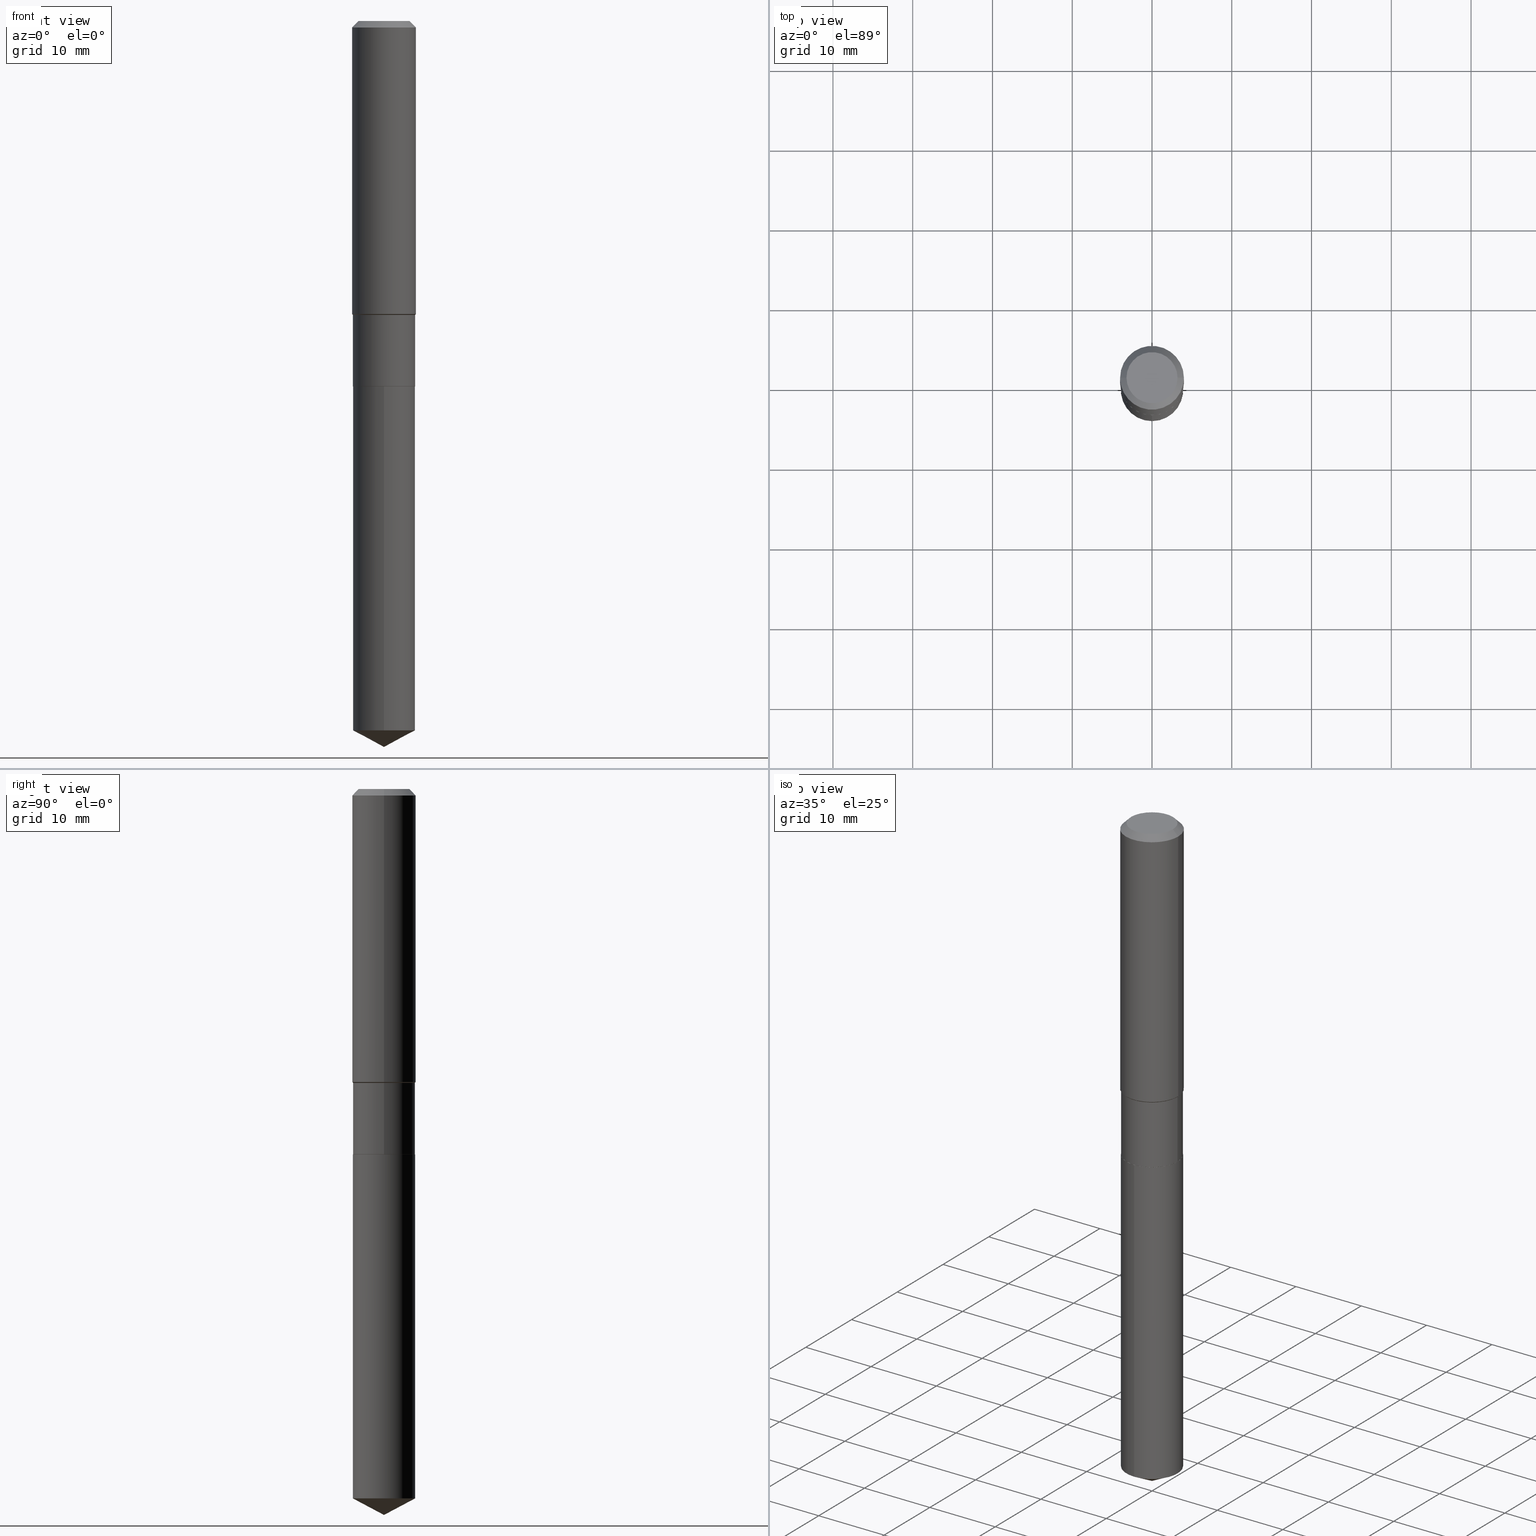
[diagram: canonical four-view strip — front | top / right | iso, engineering-drawing reading convention]
A machine part, canonical four-view strip (front | top / right | iso — engineering-drawing reading convention). The complete STEP part file that produces these views, byte-faithful:
ISO-10303-21;
HEADER;
FILE_DESCRIPTION (( 'STEP AP203' ),
    '1' );
FILE_NAME ('65208.STEP',
    '2024-04-24T21:24:12',
    ( '' ),
    ( '' ),
    'SwSTEP 2.0',
    'SolidWorks 2023',
    '' );
FILE_SCHEMA (( 'CONFIG_CONTROL_DESIGN' ));
ENDSEC;

DATA;
#1 = ORIENTED_EDGE ( 'NONE', *, *, #433, .F. ) ;
#2 = SECURITY_CLASSIFICATION ( '', '', #104 ) ;
#3 = DIRECTION ( 'NONE',  ( -2.445468806185136597E-29, 3.491481338843145583E-15, 1.000000000000000000 ) ) ;
#4 = EDGE_CURVE ( 'NONE', #477, #212, #108, .T. ) ;
#5 = AXIS2_PLACEMENT_3D ( 'NONE', #161, #412, #301 ) ;
#6 = FACE_OUTER_BOUND ( 'NONE', #184, .T. ) ;
#7 = EDGE_LOOP ( 'NONE', ( #424, #173 ) ) ;
#8 = LINE ( 'NONE', #280, #177 ) ;
#9 = FACE_OUTER_BOUND ( 'NONE', #304, .T. ) ;
#10 = ORIENTED_EDGE ( 'NONE', *, *, #160, .F. ) ;
#11 = LINE ( 'NONE', #153, #125 ) ;
#12 = CONICAL_SURFACE ( 'NONE', #287, 74.04434902938325536, 1.082104136236484937 ) ;
#13 = CONICAL_SURFACE ( 'NONE', #447, 0.1575000000000000011, 0.7853981633974450594 ) ;
#14 = CARTESIAN_POINT ( 'NONE',  ( -0.1535499999999999643, 1.091038370759633582E-15, -7.553024831086406471E-30 ) ) ;
#15 = CARTESIAN_POINT ( 'NONE',  ( 3.545929768968448850E-29, -5.062647941322561509E-15, -1.450000000000000178 ) ) ;
#16 = VERTEX_POINT ( 'NONE', #144 ) ;
#17 = DIRECTION ( 'NONE',  ( -2.445468806185136597E-29, 3.491481338843145583E-15, 1.000000000000000000 ) ) ;
#18 = VERTEX_POINT ( 'NONE', #261 ) ;
#19 = FACE_OUTER_BOUND ( 'NONE', #354, .T. ) ;
#20 = CARTESIAN_POINT ( 'NONE',  ( -0.1535499999999999365, -3.971609570562927927E-15, -1.450000000000000178 ) ) ;
#21 = CARTESIAN_POINT ( 'NONE',  ( -4.719860820353100843E-47, 6.738710358733633822E-33, 1.930043355456229866E-18 ) ) ;
#22 = CALENDAR_DATE ( 2024, 24, 4 ) ;
#23 = EDGE_CURVE ( 'NONE', #146, #360, #366, .T. ) ;
#24 = LENGTH_MEASURE_WITH_UNIT ( LENGTH_MEASURE( 0.02539999999999999897 ), #281 );
#25 = CONICAL_SURFACE ( 'NONE', #345, 0.1530499999999999916, 0.7853981633975507526 ) ;
#26 = CARTESIAN_POINT ( 'NONE',  ( -0.1575000000000000844, 1.119104808822158392E-15, -7.747322767151481189E-30 ) ) ;
#27 = FACE_OUTER_BOUND ( 'NONE', #381, .T. ) ;
#28 = ADVANCED_FACE ( 'NONE', ( #374 ), #487, .T. ) ;
#29 = AXIS2_PLACEMENT_3D ( 'NONE', #455, #315, #474 ) ;
#30 = AXIS2_PLACEMENT_3D ( 'NONE', #90, #233, #303 ) ;
#31 = PERSON_AND_ORGANIZATION ( #51, #242 ) ;
#32 = DIRECTION ( 'NONE',  ( -2.445434564979098040E-29, 3.491530374199081050E-15, 1.000000000000000000 ) ) ;
#33 = APPROVAL_ROLE ( '' ) ;
#34 = ORIENTED_EDGE ( 'NONE', *, *, #274, .T. ) ;
#35 = DIRECTION ( 'NONE',  ( 1.000000000000000000, 0.000000000000000000, 0.000000000000000000 ) ) ;
#36 = CONICAL_SURFACE ( 'NONE', #5, 0.1530499999999999916, 0.7853981633975507526 ) ;
#37 = AXIS2_PLACEMENT_3D ( 'NONE', #313, #350, #99 ) ;
#38 = ORIENTED_EDGE ( 'NONE', *, *, #232, .T. ) ;
#39 = CARTESIAN_POINT ( 'NONE',  ( 3.545929768968448850E-29, -5.062647941322561509E-15, -1.450000000000000178 ) ) ;
#40 = EDGE_CURVE ( 'NONE', #360, #314, #222, .T. ) ;
#41 = CYLINDRICAL_SURFACE ( 'NONE', #191, 0.1535499999999999921 ) ;
#42 = CYLINDRICAL_SURFACE ( 'NONE', #29, 0.1575000000000000844 ) ;
#43 = CC_DESIGN_APPROVAL ( #165, ( #2 ) ) ;
#44 = DIRECTION ( 'NONE',  ( -2.445434564979098040E-29, 3.491530374199081050E-15, 1.000000000000000000 ) ) ;
#45 = EDGE_LOOP ( 'NONE', ( #453, #390, #393, #409 ) ) ;
#46 = CARTESIAN_POINT ( 'NONE',  ( 0.000000000000000000, 0.000000000000000000, 0.000000000000000000 ) ) ;
#47 = ORIENTED_EDGE ( 'NONE', *, *, #265, .F. ) ;
#48 = CARTESIAN_POINT ( 'NONE',  ( 4.408446616909946105E-29, -6.294093409532539036E-15, -1.802700000000000191 ) ) ;
#49 = EDGE_LOOP ( 'NONE', ( #440, #377, #80, #102 ) ) ;
#50 = ADVANCED_FACE ( 'NONE', ( #180 ), #459, .T. ) ;
#51 = PERSON ( 'UNSPECIFIED', 'UNSPECIFIED', 'UNSPECIFIED', ('UNSPECIFIED'), ('UNSPECIFIED'), ('UNSPECIFIED') ) ;
#52 = DIRECTION ( 'NONE',  ( -2.445468806185136597E-29, 3.491481338843145583E-15, 1.000000000000000000 ) ) ;
#53 = CIRCLE ( 'NONE', #482, 0.1530499999999999916 ) ;
#54 = ORIENTED_EDGE ( 'NONE', *, *, #444, .F. ) ;
#55 = DIRECTION ( 'NONE',  ( 2.445468806185136597E-29, -3.491481338843145583E-15, -1.000000000000000000 ) ) ;
#56 = VERTEX_POINT ( 'NONE', #291 ) ;
#57 = CARTESIAN_POINT ( 'NONE',  ( 7.703226739483226971E-31, -1.099816621735597538E-16, -0.03150000000000019451 ) ) ;
#58 = EDGE_CURVE ( 'NONE', #272, #56, #182, .T. ) ;
#59 = CARTESIAN_POINT ( 'NONE',  ( 0.1575000000000000844, -1.099816621735587677E-15, 7.679978421878603638E-30 ) ) ;
#60 = EDGE_LOOP ( 'NONE', ( #126, #66, #445, #457 ) ) ;
#61 = DIRECTION ( 'NONE',  ( -1.000000000000000000, 6.982962677686265922E-15, -4.876176775795935793E-29 ) ) ;
#62 = ORIENTED_EDGE ( 'NONE', *, *, #130, .T. ) ;
#63 = DIRECTION ( 'NONE',  ( -2.445468806185136877E-29, 3.491481338843145188E-15, 1.000000000000000000 ) ) ;
#64 = ADVANCED_FACE ( 'NONE', ( #266 ), #41, .T. ) ;
#65 = DIRECTION ( 'NONE',  ( -2.445468806185136597E-29, 3.491481338843145583E-15, 1.000000000000000000 ) ) ;
#66 = ORIENTED_EDGE ( 'NONE', *, *, #488, .T. ) ;
#67 = PERSON_AND_ORGANIZATION_ROLE ( 'creator' ) ;
#68 = APPROVAL_ROLE ( '' ) ;
#69 = ORIENTED_EDGE ( 'NONE', *, *, #403, .F. ) ;
#70 = EDGE_CURVE ( 'NONE', #416, #275, #143, .T. ) ;
#71 = DIRECTION ( 'NONE',  ( -2.445468806185136597E-29, 3.491481338843145583E-15, 1.000000000000000000 ) ) ;
#72 = COORDINATED_UNIVERSAL_TIME_OFFSET ( 5, 0, .BEHIND. ) ;
#73 = ORIENTED_EDGE ( 'NONE', *, *, #174, .F. ) ;
#74 = CC_DESIGN_APPROVAL ( #294, ( #380 ) ) ;
#75 = EDGE_CURVE ( 'NONE', #228, #471, #92, .T. ) ;
#76 = FACE_OUTER_BOUND ( 'NONE', #45, .T. ) ;
#77 = ORIENTED_EDGE ( 'NONE', *, *, #70, .F. ) ;
#78 = DIRECTION ( 'NONE',  ( 2.445434564979097479E-29, -3.491530374199081444E-15, -1.000000000000000000 ) ) ;
#79 = DIRECTION ( 'NONE',  ( -2.445434564979098040E-29, 3.491530374199081444E-15, 1.000000000000000000 ) ) ;
#80 = ORIENTED_EDGE ( 'NONE', *, *, #462, .T. ) ;
#81 = DIRECTION ( 'NONE',  ( 1.000000000000000000, -6.982962677686265922E-15, 0.000000000000000000 ) ) ;
#82 = AXIS2_PLACEMENT_3D ( 'NONE', #48, #452, #119 ) ;
#83 = ORIENTED_EDGE ( 'NONE', *, *, #411, .T. ) ;
#84 = DIRECTION ( 'NONE',  ( -2.445468806185136597E-29, 3.491481338843145583E-15, 1.000000000000000000 ) ) ;
#85 = DIRECTION ( 'NONE',  ( -2.445468806185136597E-29, 3.491481338843145583E-15, 1.000000000000000000 ) ) ;
#86 = VERTEX_POINT ( 'NONE', #338 ) ;
#87 = DIRECTION ( 'NONE',  ( 2.445468806185136597E-29, -3.491481338843145583E-15, -1.000000000000000000 ) ) ;
#88 = ORIENTED_EDGE ( 'NONE', *, *, #130, .F. ) ;
#89 = LINE ( 'NONE', #14, #325 ) ;
#90 = CARTESIAN_POINT ( 'NONE',  ( 4.409669351313038346E-29, -6.295839150201959750E-15, -1.803200000000000136 ) ) ;
#91 = LOCAL_TIME ( 17, 24, 12.00000000000000000, #172 ) ;
#92 = CIRCLE ( 'NONE', #428, 0.1535499999999999365 ) ;
#93 = ADVANCED_FACE ( 'NONE', ( #376 ), #235, .T. ) ;
#94 = EDGE_LOOP ( 'NONE', ( #436, #128, #120 ) ) ;
#95 = CC_DESIGN_PERSON_AND_ORGANIZATION_ASSIGNMENT ( #183, #368, ( #100 ) ) ;
#96 = CARTESIAN_POINT ( 'NONE',  ( 1.091038370759719765E-15, 0.1535499999999937193, -1.803200000000000580 ) ) ;
#97 = APPROVAL_ROLE ( '' ) ;
#98 = ORIENTED_EDGE ( 'NONE', *, *, #174, .T. ) ;
#99 = DIRECTION ( 'NONE',  ( -6.982962677686265133E-15, -1.000000000000000000, 3.558252026915353702E-15 ) ) ;
#100 = PRODUCT_DEFINITION_FORMATION_WITH_SPECIFIED_SOURCE ( 'ANY', '', #123, .NOT_KNOWN. ) ;
#101 = LINE ( 'NONE', #26, #400 ) ;
#102 = ORIENTED_EDGE ( 'NONE', *, *, #58, .F. ) ;
#103 = CC_DESIGN_DATE_AND_TIME_ASSIGNMENT ( #219, #443, ( #2 ) ) ;
#104 = SECURITY_CLASSIFICATION_LEVEL ( 'unclassified' ) ;
#105 = ORIENTED_EDGE ( 'NONE', *, *, #218, .F. ) ;
#106 = DIMENSIONAL_EXPONENTS ( 1.000000000000000000, 0.000000000000000000, 0.000000000000000000, 0.000000000000000000, 0.000000000000000000, 0.000000000000000000, 0.000000000000000000 ) ;
#107 = ADVANCED_FACE ( 'NONE', ( #6 ), #36, .T. ) ;
#108 = CIRCLE ( 'NONE', #270, 0.1535499999999999921 ) ;
#109 = APPROVAL_DATE_TIME ( #489, #165 ) ;
#110 = DIRECTION ( 'NONE',  ( 6.273719981627760554E-15, 0.8829475928589289868, 0.4694715627858871976 ) ) ;
#111 = PERSON_AND_ORGANIZATION ( #51, #242 ) ;
#112 = APPROVAL_STATUS ( 'not_yet_approved' ) ;
#113 = ORIENTED_EDGE ( 'NONE', *, *, #249, .F. ) ;
#114 = ADVANCED_FACE ( 'NONE', ( #9 ), #25, .T. ) ;
#115 = AXIS2_PLACEMENT_3D ( 'NONE', #308, #202, #276 ) ;
#116 = CONICAL_SURFACE ( 'NONE', #480, 0.1535499999999999365, 0.7853981633974634891 ) ;
#117 = ORIENTED_EDGE ( 'NONE', *, *, #141, .F. ) ;
#118 = CARTESIAN_POINT ( 'NONE',  ( 0.000000000000000000, 0.000000000000000000, 0.000000000000000000 ) ) ;
#119 = DIRECTION ( 'NONE',  ( 1.000000000000000000, -6.982962677686269077E-15, 0.000000000000000000 ) ) ;
#120 = ORIENTED_EDGE ( 'NONE', *, *, #274, .F. ) ;
#121 = CARTESIAN_POINT ( 'NONE',  ( -1.072233919158681970E-15, -0.1535500000000062926, -1.803199999999999470 ) ) ;
#122 = ORIENTED_EDGE ( 'NONE', *, *, #23, .F. ) ;
#123 = PRODUCT ( '65208', '65208', '', ( #225 ) ) ;
#124 = DIRECTION ( 'NONE',  ( -2.445434564979098040E-29, 3.491530374199081444E-15, 1.000000000000000000 ) ) ;
#125 = VECTOR ( 'NONE', #379, 39.37007874015748143 ) ;
#126 = ORIENTED_EDGE ( 'NONE', *, *, #265, .T. ) ;
#127 = DIRECTION ( 'NONE',  ( -6.982962677686266711E-15, -1.000000000000000000, 3.558252026915354491E-15 ) ) ;
#128 = ORIENTED_EDGE ( 'NONE', *, *, #23, .T. ) ;
#129 = DIRECTION ( 'NONE',  ( -2.445434564979098040E-29, 3.491530374199081050E-15, 1.000000000000000000 ) ) ;
#130 = EDGE_CURVE ( 'NONE', #324, #16, #334, .T. ) ;
#131 = DIRECTION ( 'NONE',  ( 0.7071067811865582309, -2.468850131082369079E-15, 0.7071067811865368036 ) ) ;
#132 = APPLICATION_PROTOCOL_DEFINITION ( 'international standard', 'config_control_design', 1994, #237 ) ;
#133 = AXIS2_PLACEMENT_3D ( 'NONE', #327, #140, #258 ) ;
#134 = DIRECTION ( 'NONE',  ( 1.000000000000000000, -6.982962677686267499E-15, 4.876176775795936353E-29 ) ) ;
#135 = LINE ( 'NONE', #284, #297 ) ;
#136 = ADVANCED_FACE ( 'NONE', ( #420 ), #240, .T. ) ;
#137 = CARTESIAN_POINT ( 'NONE',  ( 1.091038370759719173E-15, 0.1535499999999877796, -3.501056016768380630 ) ) ;
#138 = CIRCLE ( 'NONE', #388, 0.1535499999999999921 ) ;
#139 =( GEOMETRIC_REPRESENTATION_CONTEXT ( 3 ) GLOBAL_UNCERTAINTY_ASSIGNED_CONTEXT ( ( #283 ) ) GLOBAL_UNIT_ASSIGNED_CONTEXT ( ( #318, #461, #147 ) ) REPRESENTATION_CONTEXT ( 'NONE', 'WORKASPACE' ) );
#140 = DIRECTION ( 'NONE',  ( -2.445434564979098040E-29, 3.491530374199081050E-15, 1.000000000000000000 ) ) ;
#141 = EDGE_CURVE ( 'NONE', #275, #416, #138, .T. ) ;
#142 = VERTEX_POINT ( 'NONE', #383 ) ;
#143 = CIRCLE ( 'NONE', #422, 0.1535499999999999921 ) ;
#144 = CARTESIAN_POINT ( 'NONE',  ( -0.1575000000000000011, -1.460314317281686560E-15, -0.03150000000000019451 ) ) ;
#145 = EDGE_CURVE ( 'NONE', #477, #471, #11, .T. ) ;
#146 = VERTEX_POINT ( 'NONE', #310 ) ;
#147 =( NAMED_UNIT ( * ) SI_UNIT ( $, .STERADIAN. ) SOLID_ANGLE_UNIT ( ) );
#148 = ORIENTED_EDGE ( 'NONE', *, *, #286, .T. ) ;
#149 = AXIS2_PLACEMENT_3D ( 'NONE', #21, #250, #61 ) ;
#150 = FACE_OUTER_BOUND ( 'NONE', #269, .T. ) ;
#151 = LINE ( 'NONE', #121, #460 ) ;
#152 = PLANE ( 'NONE',  #227 ) ;
#153 = CARTESIAN_POINT ( 'NONE',  ( 0.1535499999999999643, -1.072233919158725949E-15, 7.487369439234657779E-30 ) ) ;
#154 = ORIENTED_EDGE ( 'NONE', *, *, #179, .T. ) ;
#155 = EDGE_CURVE ( 'NONE', #56, #272, #316, .T. ) ;
#156 = LINE ( 'NONE', #196, #298 ) ;
#157 = CARTESIAN_POINT ( 'NONE',  ( 0.1535499999999999365, -6.134881860481286866E-15, -1.450000000000000178 ) ) ;
#158 = CARTESIAN_POINT ( 'NONE',  ( 4.409669351313038346E-29, -6.295839150201959750E-15, -1.803200000000000136 ) ) ;
#159 = AXIS2_PLACEMENT_3D ( 'NONE', #39, #185, #230 ) ;
#160 = EDGE_CURVE ( 'NONE', #360, #275, #156, .T. ) ;
#161 = CARTESIAN_POINT ( 'NONE',  ( 4.409669351313038346E-29, -6.295839150201959750E-15, -1.803200000000000136 ) ) ;
#162 = EDGE_LOOP ( 'NONE', ( #348, #204, #83, #38 ) ) ;
#163 = FACE_OUTER_BOUND ( 'NONE', #162, .T. ) ;
#164 = CARTESIAN_POINT ( 'NONE',  ( 0.1575000000000000011, -1.209798283909146741E-15, -0.03150000000000019451 ) ) ;
#165 = APPROVAL ( #329, 'UNSPECIFIED' ) ;
#166 = ORIENTED_EDGE ( 'NONE', *, *, #201, .T. ) ;
#167 = DIRECTION ( 'NONE',  ( -0.7071067811865582309, 7.493145998870392025E-15, 0.7071067811865368036 ) ) ;
#168 = DIRECTION ( 'NONE',  ( 1.000000000000000000, -6.982962677686265922E-15, 4.876176775795935793E-29 ) ) ;
#169 = DATE_AND_TIME ( #22, #91 ) ;
#170 = CIRCLE ( 'NONE', #439, 0.1260000000000000009 ) ;
#171 = CARTESIAN_POINT ( 'NONE',  ( -8.751563121743651164E-28, 1.249528083047801211E-13, 35.78737874015747877 ) ) ;
#172 = COORDINATED_UNIVERSAL_TIME_OFFSET ( 5, 0, .BEHIND. ) ;
#173 = ORIENTED_EDGE ( 'NONE', *, *, #307, .T. ) ;
#174 = EDGE_CURVE ( 'NONE', #142, #386, #378, .T. ) ;
#175 = DIRECTION ( 'NONE',  ( 0.7071067811865452413, -7.319954787623248157E-15, -0.7071067811865497932 ) ) ;
#176 = EDGE_LOOP ( 'NONE', ( #320, #331, #88, #113 ) ) ;
#177 = VECTOR ( 'NONE', #229, 39.37007874015748143 ) ;
#178 = VECTOR ( 'NONE', #398, 39.37007874015748143 ) ;
#179 = EDGE_CURVE ( 'NONE', #386, #477, #187, .T. ) ;
#180 = FACE_OUTER_BOUND ( 'NONE', #94, .T. ) ;
#181 = CARTESIAN_POINT ( 'NONE',  ( 3.536270167184016952E-29, -5.048856590034130447E-15, -1.446050000000000058 ) ) ;
#182 = CIRCLE ( 'NONE', #252, 0.1575000000000001676 ) ;
#183 = PERSON_AND_ORGANIZATION ( #51, #242 ) ;
#184 = EDGE_LOOP ( 'NONE', ( #54, #98, #154, #105 ) ) ;
#185 = DIRECTION ( 'NONE',  ( -2.445468806185136597E-29, 3.491481338843145583E-15, 1.000000000000000000 ) ) ;
#186 = APPLICATION_CONTEXT ( 'configuration controlled 3d designs of mechanical parts and assemblies' ) ;
#187 = LINE ( 'NONE', #335, #293 ) ;
#188 = PRODUCT_DEFINITION_SHAPE ( 'NONE', 'NONE',  #380 ) ;
#189 = VECTOR ( 'NONE', #131, 39.37007874015748143 ) ;
#190 = CYLINDRICAL_SURFACE ( 'NONE', #363, 0.1535499999999999643 ) ;
#191 = AXIS2_PLACEMENT_3D ( 'NONE', #158, #129, #127 ) ;
#192 = DIRECTION ( 'NONE',  ( -2.445468806185136597E-29, 3.491481338843145583E-15, 1.000000000000000000 ) ) ;
#193 = EDGE_CURVE ( 'NONE', #18, #86, #170, .T. ) ;
#194 = ORIENTED_EDGE ( 'NONE', *, *, #444, .T. ) ;
#195 = CARTESIAN_POINT ( 'NONE',  ( 4.409669351313038346E-29, -6.295839150201959750E-15, -1.803200000000000136 ) ) ;
#196 = CARTESIAN_POINT ( 'NONE',  ( 1.091038370759677758E-15, 0.1535499999999936915, -1.803200000000000580 ) ) ;
#197 = ORIENTED_EDGE ( 'NONE', *, *, #403, .T. ) ;
#198 = ADVANCED_BREP_SHAPE_REPRESENTATION ( '65208', ( #466, #296, #245 ), #139 ) ;
#199 = CARTESIAN_POINT ( 'NONE',  ( -0.1535499999999999365, -4.587332304667917085E-15, -1.450000000000000178 ) ) ;
#200 = ORIENTED_EDGE ( 'NONE', *, *, #201, .F. ) ;
#201 = EDGE_CURVE ( 'NONE', #314, #416, #151, .T. ) ;
#202 = DIRECTION ( 'NONE',  ( -2.445468806185136597E-29, 3.491481338843145583E-15, 1.000000000000000000 ) ) ;
#203 = AXIS2_PLACEMENT_3D ( 'NONE', #210, #65, #352 ) ;
#204 = ORIENTED_EDGE ( 'NONE', *, *, #193, .F. ) ;
#205 = DIRECTION ( 'NONE',  ( 1.000000000000000000, -6.982962677686265922E-15, 0.000000000000000000 ) ) ;
#206 = EDGE_LOOP ( 'NONE', ( #34, #215, #77, #200 ) ) ;
#207 = CARTESIAN_POINT ( 'NONE',  ( 0.000000000000000000, 0.000000000000000000, 0.000000000000000000 ) ) ;
#208 = DIRECTION ( 'NONE',  ( -2.445434564979098040E-29, 3.491530374199081050E-15, 1.000000000000000000 ) ) ;
#209 = CYLINDRICAL_SURFACE ( 'NONE', #472, 0.1575000000000000844 ) ;
#210 = CARTESIAN_POINT ( 'NONE',  ( 3.545929768968448850E-29, -5.062647941322561509E-15, -1.450000000000000178 ) ) ;
#211 = PERSON_AND_ORGANIZATION ( #51, #242 ) ;
#212 = VERTEX_POINT ( 'NONE', #271 ) ;
#213 = CC_DESIGN_PERSON_AND_ORGANIZATION_ASSIGNMENT ( #211, #326, ( #380 ) ) ;
#214 = FACE_OUTER_BOUND ( 'NONE', #7, .T. ) ;
#215 = ORIENTED_EDGE ( 'NONE', *, *, #160, .T. ) ;
#216 = CARTESIAN_POINT ( 'NONE',  ( -9.439721640706201686E-47, 1.347742071746726764E-32, 3.860086710912459732E-18 ) ) ;
#217 = ORIENTED_EDGE ( 'NONE', *, *, #179, .F. ) ;
#218 = EDGE_CURVE ( 'NONE', #212, #477, #306, .T. ) ;
#219 = DATE_AND_TIME ( #435, #277 ) ;
#220 = EDGE_LOOP ( 'NONE', ( #10, #339, #166, #117 ) ) ;
#221 = CC_DESIGN_APPROVAL ( #437, ( #100 ) ) ;
#222 = CIRCLE ( 'NONE', #365, 0.1535500000000000198 ) ;
#223 = DATE_AND_TIME ( #441, #421 ) ;
#224 = DATE_AND_TIME ( #484, #450 ) ;
#225 = MECHANICAL_CONTEXT ( 'NONE', #186, 'mechanical' ) ;
#226 = CLOSED_SHELL ( 'NONE', ( #64, #50, #260, #419, #397 ) ) ;
#227 = AXIS2_PLACEMENT_3D ( 'NONE', #410, #78, #231 ) ;
#228 = VERTEX_POINT ( 'NONE', #199 ) ;
#229 = DIRECTION ( 'NONE',  ( -0.7071067811865452413, 2.468850131082233000E-15, -0.7071067811865497932 ) ) ;
#230 = DIRECTION ( 'NONE',  ( 1.000000000000000000, -6.982962677686265133E-15, 0.000000000000000000 ) ) ;
#231 = DIRECTION ( 'NONE',  ( 6.982962677686265922E-15, 1.000000000000000000, -3.491530374199081444E-15 ) ) ;
#232 = EDGE_CURVE ( 'NONE', #16, #324, #357, .T. ) ;
#233 = DIRECTION ( 'NONE',  ( -2.445468806185136597E-29, 3.491481338843145583E-15, 1.000000000000000000 ) ) ;
#234 = ORIENTED_EDGE ( 'NONE', *, *, #4, .T. ) ;
#235 = CONICAL_SURFACE ( 'NONE', #413, 0.1575000000000000011, 0.7853981633974450594 ) ;
#236 = CARTESIAN_POINT ( 'NONE',  ( 4.409669351313038346E-29, -6.295839150201959750E-15, -1.803200000000000136 ) ) ;
#237 = APPLICATION_CONTEXT ( 'configuration controlled 3d designs of mechanical parts and assemblies' ) ;
#238 = CARTESIAN_POINT ( 'NONE',  ( 7.703226739483226971E-31, -1.099816621735597538E-16, -0.03150000000000019451 ) ) ;
#239 = DIRECTION ( 'NONE',  ( -0.7071067811866199593, 7.493145998870616062E-15, 0.7071067811864750752 ) ) ;
#240 = CYLINDRICAL_SURFACE ( 'NONE', #396, 0.1535499999999999643 ) ;
#241 = ORIENTED_EDGE ( 'NONE', *, *, #4, .F. ) ;
#242 = ORGANIZATION ( 'UNSPECIFIED', 'UNSPECIFIED', '' ) ;
#243 = DIRECTION ( 'NONE',  ( 1.000000000000000000, -6.982962677686265133E-15, 0.000000000000000000 ) ) ;
#244 = AXIS2_PLACEMENT_3D ( 'NONE', #238, #192, #467 ) ;
#245 = AXIS2_PLACEMENT_3D ( 'NONE', #358, #295, #35 ) ;
#246 = EDGE_LOOP ( 'NONE', ( #234, #483, #47, #300 ) ) ;
#247 = CARTESIAN_POINT ( 'NONE',  ( 0.1535499999999999921, -7.366327328691265182E-15, -1.802700000000000191 ) ) ;
#248 = CARTESIAN_POINT ( 'NONE',  ( 0.1535499999999999365, -6.134881860481286866E-15, -1.450000000000000178 ) ) ;
#249 = EDGE_CURVE ( 'NONE', #56, #324, #478, .T. ) ;
#250 = DIRECTION ( 'NONE',  ( 2.438088387897960049E-29, -3.491481338843145188E-15, -1.000000000000000000 ) ) ;
#251 = DIRECTION ( 'NONE',  ( -6.165590087286828929E-15, -0.8829475928589255451, 0.4694715627858933038 ) ) ;
#252 = AXIS2_PLACEMENT_3D ( 'NONE', #181, #71, #442 ) ;
#253 = ORIENTED_EDGE ( 'NONE', *, *, #75, .F. ) ;
#254 = ADVANCED_FACE ( 'NONE', ( #27 ), #423, .F. ) ;
#255 = PERSON_AND_ORGANIZATION ( #51, #242 ) ;
#256 = CARTESIAN_POINT ( 'NONE',  ( 4.409669351313038346E-29, -6.295839150201959750E-15, -1.803200000000000136 ) ) ;
#257 = APPROVAL_DATE_TIME ( #223, #437 ) ;
#258 = DIRECTION ( 'NONE',  ( -6.982962677686266711E-15, -1.000000000000000000, 3.541896320645574279E-15 ) ) ;
#259 = SHAPE_DEFINITION_REPRESENTATION ( #188, #198 ) ;
#260 = ADVANCED_FACE ( 'NONE', ( #323 ), #12, .T. ) ;
#261 = CARTESIAN_POINT ( 'NONE',  ( -0.1260000000000000009, 9.348441284752484904E-16, 3.860086710906114178E-18 ) ) ;
#262 = AXIS2_PLACEMENT_3D ( 'NONE', #362, #431, #168 ) ;
#263 = VECTOR ( 'NONE', #239, 39.37007874015748143 ) ;
#264 = CARTESIAN_POINT ( 'NONE',  ( 8.761382986275552729E-29, -1.250892903053540354E-14, -3.582699999999999996 ) ) ;
#265 = EDGE_CURVE ( 'NONE', #471, #228, #405, .T. ) ;
#266 = FACE_OUTER_BOUND ( 'NONE', #206, .T. ) ;
#267 = ORIENTED_EDGE ( 'NONE', *, *, #70, .T. ) ;
#268 = CARTESIAN_POINT ( 'NONE',  ( 4.409669351313038346E-29, -6.295839150201959750E-15, -1.803200000000000136 ) ) ;
#269 = EDGE_LOOP ( 'NONE', ( #1, #311, #468, #253 ) ) ;
#270 = AXIS2_PLACEMENT_3D ( 'NONE', #448, #485, #328 ) ;
#271 = CARTESIAN_POINT ( 'NONE',  ( -0.1535499999999999921, -4.587332304667917085E-15, -1.802700000000000191 ) ) ;
#272 = VERTEX_POINT ( 'NONE', #427 ) ;
#273 = CARTESIAN_POINT ( 'NONE',  ( 7.703226739483226971E-31, -1.099816621735597538E-16, -0.03150000000000019451 ) ) ;
#274 = EDGE_CURVE ( 'NONE', #314, #360, #481, .T. ) ;
#275 = VERTEX_POINT ( 'NONE', #96 ) ;
#276 = DIRECTION ( 'NONE',  ( 1.000000000000000000, -6.982962677686267499E-15, 0.000000000000000000 ) ) ;
#277 = LOCAL_TIME ( 17, 24, 12.00000000000000000, #367 ) ;
#278 = VECTOR ( 'NONE', #110, 39.37007874015747433 ) ;
#279 = PERSON_AND_ORGANIZATION ( #51, #242 ) ;
#280 = CARTESIAN_POINT ( 'NONE',  ( -0.1575000000000000011, 9.898349595620272334E-16, -0.03150000000000019451 ) ) ;
#281 =( LENGTH_UNIT ( ) NAMED_UNIT ( * ) SI_UNIT ( $, .METRE. ) );
#282 = APPROVAL_STATUS ( 'not_yet_approved' ) ;
#283 = UNCERTAINTY_MEASURE_WITH_UNIT (LENGTH_MEASURE( 1.000000000000000082E-05 ), #318, 'distance_accuracy_value', 'NONE');
#284 = CARTESIAN_POINT ( 'NONE',  ( 0.1575000000000000011, -1.190510096822576026E-15, -0.03150000000000019451 ) ) ;
#285 = CIRCLE ( 'NONE', #404, 0.1260000000000000009 ) ;
#286 = EDGE_CURVE ( 'NONE', #146, #314, #359, .T. ) ;
#287 = AXIS2_PLACEMENT_3D ( 'NONE', #171, #208, #322 ) ;
#288 = CARTESIAN_POINT ( 'NONE',  ( -1.072233919158640357E-15, -0.1535500000000122045, -3.501056016768379742 ) ) ;
#289 = DATE_TIME_ROLE ( 'creation_date' ) ;
#290 = PERSON_AND_ORGANIZATION_ROLE ( 'classification_officer' ) ;
#291 = CARTESIAN_POINT ( 'NONE',  ( 0.1575000000000001676, -6.148673211769718717E-15, -1.446050000000000058 ) ) ;
#292 = ORIENTED_EDGE ( 'NONE', *, *, #141, .T. ) ;
#293 = VECTOR ( 'NONE', #415, 39.37007874015748143 ) ;
#294 = APPROVAL ( #282, 'UNSPECIFIED' ) ;
#295 = DIRECTION ( 'NONE',  ( 0.000000000000000000, 0.000000000000000000, 1.000000000000000000 ) ) ;
#296 = MANIFOLD_SOLID_BREP ( 'Body-Move/Copy2[2]', #449 ) ;
#297 = VECTOR ( 'NONE', #175, 39.37007874015748143 ) ;
#298 = VECTOR ( 'NONE', #79, 39.37007874015748143 ) ;
#299 = DIRECTION ( 'NONE',  ( -6.982962677686266711E-15, -1.000000000000000000, 3.558252026915354491E-15 ) ) ;
#300 = ORIENTED_EDGE ( 'NONE', *, *, #145, .F. ) ;
#301 = DIRECTION ( 'NONE',  ( 1.000000000000000000, -6.982962677686265922E-15, 0.000000000000000000 ) ) ;
#302 = DIRECTION ( 'NONE',  ( -2.445468806185136597E-29, 3.491481338843145583E-15, 1.000000000000000000 ) ) ;
#303 = DIRECTION ( 'NONE',  ( 1.000000000000000000, -6.982962677686265922E-15, 0.000000000000000000 ) ) ;
#304 = EDGE_LOOP ( 'NONE', ( #197, #194, #241, #217 ) ) ;
#305 = APPROVAL_PERSON_ORGANIZATION ( #279, #294, #97 ) ;
#306 = CIRCLE ( 'NONE', #82, 0.1535499999999999921 ) ;
#307 = EDGE_CURVE ( 'NONE', #86, #18, #285, .T. ) ;
#308 = CARTESIAN_POINT ( 'NONE',  ( 3.536270167184016952E-29, -5.048856590034130447E-15, -1.446050000000000058 ) ) ;
#309 = LINE ( 'NONE', #465, #263 ) ;
#310 = CARTESIAN_POINT ( 'NONE',  ( 8.761258415950614304E-29, -1.250910587164304758E-14, -3.582699999999999996 ) ) ;
#311 = ORIENTED_EDGE ( 'NONE', *, *, #218, .T. ) ;
#312 = DIRECTION ( 'NONE',  ( -1.000000000000000000, 6.982962677686265922E-15, 0.000000000000000000 ) ) ;
#313 = CARTESIAN_POINT ( 'NONE',  ( 8.561665141076166263E-29, -1.222395500376542406E-14, -3.501056016768380186 ) ) ;
#314 = VERTEX_POINT ( 'NONE', #288 ) ;
#315 = DIRECTION ( 'NONE',  ( -2.445468806185136597E-29, 3.491481338843145583E-15, 1.000000000000000000 ) ) ;
#316 = CIRCLE ( 'NONE', #115, 0.1575000000000001676 ) ;
#317 = APPROVAL_DATE_TIME ( #169, #294 ) ;
#318 =( CONVERSION_BASED_UNIT ( 'INCH', #24 ) LENGTH_UNIT ( ) NAMED_UNIT ( #106 ) );
#319 = DIRECTION ( 'NONE',  ( 1.000000000000000000, -6.982962677686265922E-15, 4.876281427513067258E-29 ) ) ;
#320 = ORIENTED_EDGE ( 'NONE', *, *, #155, .T. ) ;
#321 = ADVANCED_FACE ( 'NONE', ( #429 ), #116, .T. ) ;
#322 = DIRECTION ( 'NONE',  ( -6.982962677686266711E-15, -1.000000000000000000, 3.541896320645574279E-15 ) ) ;
#323 = FACE_OUTER_BOUND ( 'NONE', #490, .T. ) ;
#324 = VERTEX_POINT ( 'NONE', #164 ) ;
#325 = VECTOR ( 'NONE', #426, 39.37007874015748143 ) ;
#326 = PERSON_AND_ORGANIZATION_ROLE ( 'creator' ) ;
#327 = CARTESIAN_POINT ( 'NONE',  ( -8.751563121743651164E-28, 1.249528083047801211E-13, 35.78737874015747877 ) ) ;
#328 = DIRECTION ( 'NONE',  ( 1.000000000000000000, -6.982962677686269077E-15, 0.000000000000000000 ) ) ;
#329 = APPROVAL_STATUS ( 'not_yet_approved' ) ;
#330 = ADVANCED_FACE ( 'NONE', ( #214 ), #356, .F. ) ;
#331 = ORIENTED_EDGE ( 'NONE', *, *, #340, .T. ) ;
#332 = DIRECTION ( 'NONE',  ( -2.445468806185136597E-29, 3.491481338843145583E-15, 1.000000000000000000 ) ) ;
#333 = CC_DESIGN_SECURITY_CLASSIFICATION ( #2, ( #100 ) ) ;
#334 = CIRCLE ( 'NONE', #244, 0.1575000000000000011 ) ;
#335 = CARTESIAN_POINT ( 'NONE',  ( 0.1530499999999999916, -7.364581588021842889E-15, -1.803200000000000136 ) ) ;
#336 = ORIENTED_EDGE ( 'NONE', *, *, #349, .T. ) ;
#337 = DIRECTION ( 'NONE',  ( 1.000000000000000000, -6.982962677686265922E-15, 0.000000000000000000 ) ) ;
#338 = CARTESIAN_POINT ( 'NONE',  ( 0.1260000000000000009, -1.027466422270894443E-15, 3.860086710919128072E-18 ) ) ;
#339 = ORIENTED_EDGE ( 'NONE', *, *, #40, .T. ) ;
#340 = EDGE_CURVE ( 'NONE', #272, #16, #101, .T. ) ;
#341 = CARTESIAN_POINT ( 'NONE',  ( 7.703226739483226971E-31, -1.099816621735597538E-16, -0.03150000000000019451 ) ) ;
#342 = ORIENTED_EDGE ( 'NONE', *, *, #307, .F. ) ;
#343 = VECTOR ( 'NONE', #167, 39.37007874015748143 ) ;
#344 = CC_DESIGN_PERSON_AND_ORGANIZATION_ASSIGNMENT ( #111, #67, ( #100 ) ) ;
#345 = AXIS2_PLACEMENT_3D ( 'NONE', #268, #3, #81 ) ;
#346 = LOCAL_TIME ( 17, 24, 12.00000000000000000, #72 ) ;
#347 = DIRECTION ( 'NONE',  ( -1.000000000000000000, 6.982962677686265922E-15, 0.000000000000000000 ) ) ;
#348 = ORIENTED_EDGE ( 'NONE', *, *, #349, .F. ) ;
#349 = EDGE_CURVE ( 'NONE', #86, #324, #135, .T. ) ;
#350 = DIRECTION ( 'NONE',  ( -2.445434564979098040E-29, 3.491530374199081050E-15, 1.000000000000000000 ) ) ;
#351 = ORIENTED_EDGE ( 'NONE', *, *, #411, .F. ) ;
#352 = DIRECTION ( 'NONE',  ( 1.000000000000000000, -6.982962677686265133E-15, 0.000000000000000000 ) ) ;
#353 = PRODUCT_RELATED_PRODUCT_CATEGORY ( 'detail', '', ( #123 ) ) ;
#354 = EDGE_LOOP ( 'NONE', ( #267, #292 ) ) ;
#355 = FACE_OUTER_BOUND ( 'NONE', #220, .T. ) ;
#356 = PLANE ( 'NONE',  #149 ) ;
#357 = CIRCLE ( 'NONE', #371, 0.1575000000000000011 ) ;
#358 = CARTESIAN_POINT ( 'NONE',  ( 0.000000000000000000, 0.000000000000000000, 0.000000000000000000 ) ) ;
#359 = LINE ( 'NONE', #476, #430 ) ;
#360 = VERTEX_POINT ( 'NONE', #137 ) ;
#361 = ADVANCED_FACE ( 'NONE', ( #76 ), #209, .T. ) ;
#362 = CARTESIAN_POINT ( 'NONE',  ( 4.409669351313038346E-29, -6.295839150201959750E-15, -1.803200000000000136 ) ) ;
#363 = AXIS2_PLACEMENT_3D ( 'NONE', #118, #391, #446 ) ;
#364 = PERSON_AND_ORGANIZATION ( #51, #242 ) ;
#365 = AXIS2_PLACEMENT_3D ( 'NONE', #406, #32, #402 ) ;
#366 = LINE ( 'NONE', #264, #278 ) ;
#367 = COORDINATED_UNIVERSAL_TIME_OFFSET ( 5, 0, .BEHIND. ) ;
#368 = PERSON_AND_ORGANIZATION_ROLE ( 'design_supplier' ) ;
#369 = APPROVAL_PERSON_ORGANIZATION ( #31, #165, #33 ) ;
#370 = PERSON_AND_ORGANIZATION ( #51, #242 ) ;
#371 = AXIS2_PLACEMENT_3D ( 'NONE', #341, #389, #205 ) ;
#372 = APPROVAL_PERSON_ORGANIZATION ( #255, #437, #68 ) ;
#373 = ADVANCED_FACE ( 'NONE', ( #150 ), #190, .T. ) ;
#374 = FACE_OUTER_BOUND ( 'NONE', #60, .T. ) ;
#375 = CARTESIAN_POINT ( 'NONE',  ( 4.409669351313038346E-29, -6.295839150201959750E-15, -1.803200000000000136 ) ) ;
#376 = FACE_OUTER_BOUND ( 'NONE', #464, .T. ) ;
#377 = ORIENTED_EDGE ( 'NONE', *, *, #75, .T. ) ;
#378 = CIRCLE ( 'NONE', #30, 0.1530499999999999916 ) ;
#379 = DIRECTION ( 'NONE',  ( -2.445468806185136877E-29, 3.491481338843145188E-15, 1.000000000000000000 ) ) ;
#380 = PRODUCT_DEFINITION ( 'UNKNOWN', '', #100, #434 ) ;
#381 = EDGE_LOOP ( 'NONE', ( #69, #73 ) ) ;
#382 = LINE ( 'NONE', #20, #343 ) ;
#383 = CARTESIAN_POINT ( 'NONE',  ( -0.1530499999999999916, -5.205704265947015077E-15, -1.803200000000000136 ) ) ;
#384 = CC_DESIGN_DATE_AND_TIME_ASSIGNMENT ( #224, #289, ( #380 ) ) ;
#385 = DIRECTION ( 'NONE',  ( -6.982962677686266711E-15, -1.000000000000000000, 3.558252026915354491E-15 ) ) ;
#386 = VERTEX_POINT ( 'NONE', #407 ) ;
#387 = AXIS2_PLACEMENT_3D ( 'NONE', #256, #451, #473 ) ;
#388 = AXIS2_PLACEMENT_3D ( 'NONE', #375, #44, #385 ) ;
#389 = DIRECTION ( 'NONE',  ( -2.445468806185136597E-29, 3.491481338843145583E-15, 1.000000000000000000 ) ) ;
#390 = ORIENTED_EDGE ( 'NONE', *, *, #58, .T. ) ;
#391 = DIRECTION ( 'NONE',  ( -2.445468806185136597E-29, 3.491481338843145583E-15, 1.000000000000000000 ) ) ;
#392 = DIRECTION ( 'NONE',  ( -2.445468806185136597E-29, 3.491481338843145583E-15, 1.000000000000000000 ) ) ;
#393 = ORIENTED_EDGE ( 'NONE', *, *, #249, .T. ) ;
#394 = APPLICATION_PROTOCOL_DEFINITION ( 'international standard', 'config_control_design', 1994, #186 ) ;
#395 = CARTESIAN_POINT ( 'NONE',  ( 3.545929768968448850E-29, -5.062647941322561509E-15, -1.450000000000000178 ) ) ;
#396 = AXIS2_PLACEMENT_3D ( 'NONE', #46, #52, #408 ) ;
#397 = ADVANCED_FACE ( 'NONE', ( #19 ), #152, .F. ) ;
#398 = DIRECTION ( 'NONE',  ( -2.445468806185136877E-29, 3.491481338843145188E-15, 1.000000000000000000 ) ) ;
#399 = ADVANCED_FACE ( 'NONE', ( #414 ), #42, .T. ) ;
#400 = VECTOR ( 'NONE', #63, 39.37007874015748143 ) ;
#401 = CC_DESIGN_PERSON_AND_ORGANIZATION_ASSIGNMENT ( #364, #290, ( #2 ) ) ;
#402 = DIRECTION ( 'NONE',  ( -6.982962677686265133E-15, -1.000000000000000000, 3.558252026915353702E-15 ) ) ;
#403 = EDGE_CURVE ( 'NONE', #386, #142, #53, .T. ) ;
#404 = AXIS2_PLACEMENT_3D ( 'NONE', #216, #17, #319 ) ;
#405 = CIRCLE ( 'NONE', #203, 0.1535499999999999365 ) ;
#406 = CARTESIAN_POINT ( 'NONE',  ( 8.561665141076166263E-29, -1.222395500376542406E-14, -3.501056016768380186 ) ) ;
#407 = CARTESIAN_POINT ( 'NONE',  ( 0.1530499999999999916, -7.364581588021842889E-15, -1.803200000000000136 ) ) ;
#408 = DIRECTION ( 'NONE',  ( 1.000000000000000000, -6.982962677686266711E-15, 4.876176775795935793E-29 ) ) ;
#409 = ORIENTED_EDGE ( 'NONE', *, *, #232, .F. ) ;
#410 = CARTESIAN_POINT ( 'NONE',  ( 4.409669351313038346E-29, -6.295839150201959750E-15, -1.803200000000000136 ) ) ;
#411 = EDGE_CURVE ( 'NONE', #18, #16, #8, .T. ) ;
#412 = DIRECTION ( 'NONE',  ( -2.445468806185136597E-29, 3.491481338843145583E-15, 1.000000000000000000 ) ) ;
#413 = AXIS2_PLACEMENT_3D ( 'NONE', #273, #87, #347 ) ;
#414 = FACE_OUTER_BOUND ( 'NONE', #176, .T. ) ;
#415 = DIRECTION ( 'NONE',  ( 0.7071067811866199593, -2.468850131083015945E-15, 0.7071067811864750752 ) ) ;
#416 = VERTEX_POINT ( 'NONE', #425 ) ;
#417 = DIRECTION ( 'NONE',  ( 1.000000000000000000, -6.982962677686265133E-15, 0.000000000000000000 ) ) ;
#418 = ORIENTED_EDGE ( 'NONE', *, *, #40, .F. ) ;
#419 = ADVANCED_FACE ( 'NONE', ( #355 ), #479, .T. ) ;
#420 = FACE_OUTER_BOUND ( 'NONE', #246, .T. ) ;
#421 = LOCAL_TIME ( 17, 24, 12.00000000000000000, #432 ) ;
#422 = AXIS2_PLACEMENT_3D ( 'NONE', #236, #463, #299 ) ;
#423 = PLANE ( 'NONE',  #262 ) ;
#424 = ORIENTED_EDGE ( 'NONE', *, *, #193, .T. ) ;
#425 = CARTESIAN_POINT ( 'NONE',  ( -1.072233919158681970E-15, -0.1535500000000062926, -1.803199999999999470 ) ) ;
#426 = DIRECTION ( 'NONE',  ( -2.445468806185136877E-29, 3.491481338843145188E-15, 1.000000000000000000 ) ) ;
#427 = CARTESIAN_POINT ( 'NONE',  ( -0.1575000000000001676, -3.929751781211971266E-15, -1.446050000000000058 ) ) ;
#428 = AXIS2_PLACEMENT_3D ( 'NONE', #15, #85, #417 ) ;
#429 = FACE_OUTER_BOUND ( 'NONE', #49, .T. ) ;
#430 = VECTOR ( 'NONE', #251, 39.37007874015748143 ) ;
#431 = DIRECTION ( 'NONE',  ( -2.438088387897960049E-29, 3.491481338843145188E-15, 1.000000000000000000 ) ) ;
#432 = COORDINATED_UNIVERSAL_TIME_OFFSET ( 5, 0, .BEHIND. ) ;
#433 = EDGE_CURVE ( 'NONE', #212, #228, #89, .T. ) ;
#434 = DESIGN_CONTEXT ( 'detailed design', #237, 'design' ) ;
#435 = CALENDAR_DATE ( 2024, 24, 4 ) ;
#436 = ORIENTED_EDGE ( 'NONE', *, *, #286, .F. ) ;
#437 = APPROVAL ( #112, 'UNSPECIFIED' ) ;
#438 = CALENDAR_DATE ( 2024, 24, 4 ) ;
#439 = AXIS2_PLACEMENT_3D ( 'NONE', #456, #332, #458 ) ;
#440 = ORIENTED_EDGE ( 'NONE', *, *, #488, .F. ) ;
#441 = CALENDAR_DATE ( 2024, 24, 4 ) ;
#442 = DIRECTION ( 'NONE',  ( 1.000000000000000000, -6.982962677686267499E-15, 0.000000000000000000 ) ) ;
#443 = DATE_TIME_ROLE ( 'classification_date' ) ;
#444 = EDGE_CURVE ( 'NONE', #142, #212, #309, .T. ) ;
#445 = ORIENTED_EDGE ( 'NONE', *, *, #155, .F. ) ;
#446 = DIRECTION ( 'NONE',  ( 1.000000000000000000, -6.982962677686266711E-15, 4.876176775795935793E-29 ) ) ;
#447 = AXIS2_PLACEMENT_3D ( 'NONE', #57, #55, #312 ) ;
#448 = CARTESIAN_POINT ( 'NONE',  ( 4.408446616909946105E-29, -6.294093409532539036E-15, -1.802700000000000191 ) ) ;
#449 = CLOSED_SHELL ( 'NONE', ( #114, #93, #399, #28, #136, #373, #321, #361, #454, #330, #254, #107 ) ) ;
#450 = LOCAL_TIME ( 17, 24, 12.00000000000000000, #486 ) ;
#451 = DIRECTION ( 'NONE',  ( -2.445434564979098040E-29, 3.491530374199081050E-15, 1.000000000000000000 ) ) ;
#452 = DIRECTION ( 'NONE',  ( -2.445468806185136597E-29, 3.491481338843145583E-15, 1.000000000000000000 ) ) ;
#453 = ORIENTED_EDGE ( 'NONE', *, *, #340, .F. ) ;
#454 = ADVANCED_FACE ( 'NONE', ( #163 ), #13, .T. ) ;
#455 = CARTESIAN_POINT ( 'NONE',  ( 0.000000000000000000, 0.000000000000000000, 0.000000000000000000 ) ) ;
#456 = CARTESIAN_POINT ( 'NONE',  ( -9.439721640706201686E-47, 1.347742071746726764E-32, 3.860086710912459732E-18 ) ) ;
#457 = ORIENTED_EDGE ( 'NONE', *, *, #462, .F. ) ;
#458 = DIRECTION ( 'NONE',  ( 1.000000000000000000, -6.982962677686265922E-15, 4.876281427513067258E-29 ) ) ;
#459 = CONICAL_SURFACE ( 'NONE', #133, 74.04434902938325536, 1.082104136236484937 ) ;
#460 = VECTOR ( 'NONE', #124, 39.37007874015748143 ) ;
#461 =( NAMED_UNIT ( * ) PLANE_ANGLE_UNIT ( ) SI_UNIT ( $, .RADIAN. ) );
#462 = EDGE_CURVE ( 'NONE', #471, #56, #469, .T. ) ;
#463 = DIRECTION ( 'NONE',  ( -2.445434564979098040E-29, 3.491530374199081050E-15, 1.000000000000000000 ) ) ;
#464 = EDGE_LOOP ( 'NONE', ( #342, #336, #62, #351 ) ) ;
#465 = CARTESIAN_POINT ( 'NONE',  ( -0.1530499999999999916, -5.208353493121126278E-15, -1.803200000000000136 ) ) ;
#466 = MANIFOLD_SOLID_BREP ( 'Body-Move/Copy2[1]', #226 ) ;
#467 = DIRECTION ( 'NONE',  ( 1.000000000000000000, -6.982962677686265922E-15, 0.000000000000000000 ) ) ;
#468 = ORIENTED_EDGE ( 'NONE', *, *, #145, .T. ) ;
#469 = LINE ( 'NONE', #248, #189 ) ;
#470 = PERSON_AND_ORGANIZATION_ROLE ( 'design_owner' ) ;
#471 = VERTEX_POINT ( 'NONE', #157 ) ;
#472 = AXIS2_PLACEMENT_3D ( 'NONE', #207, #302, #134 ) ;
#473 = DIRECTION ( 'NONE',  ( -6.982962677686266711E-15, -1.000000000000000000, 3.558252026915354491E-15 ) ) ;
#474 = DIRECTION ( 'NONE',  ( 1.000000000000000000, -6.982962677686267499E-15, 4.876176775795936353E-29 ) ) ;
#475 = CC_DESIGN_PERSON_AND_ORGANIZATION_ASSIGNMENT ( #370, #470, ( #123 ) ) ;
#476 = CARTESIAN_POINT ( 'NONE',  ( 8.761258415950614304E-29, -1.250910587164304758E-14, -3.582699999999999996 ) ) ;
#477 = VERTEX_POINT ( 'NONE', #247 ) ;
#478 = LINE ( 'NONE', #59, #178 ) ;
#479 = CYLINDRICAL_SURFACE ( 'NONE', #387, 0.1535499999999999921 ) ;
#480 = AXIS2_PLACEMENT_3D ( 'NONE', #395, #392, #243 ) ;
#481 = CIRCLE ( 'NONE', #37, 0.1535500000000000198 ) ;
#482 = AXIS2_PLACEMENT_3D ( 'NONE', #195, #84, #337 ) ;
#483 = ORIENTED_EDGE ( 'NONE', *, *, #433, .T. ) ;
#484 = CALENDAR_DATE ( 2024, 24, 4 ) ;
#485 = DIRECTION ( 'NONE',  ( -2.445468806185136597E-29, 3.491481338843145583E-15, 1.000000000000000000 ) ) ;
#486 = COORDINATED_UNIVERSAL_TIME_OFFSET ( 5, 0, .BEHIND. ) ;
#487 = CONICAL_SURFACE ( 'NONE', #159, 0.1535499999999999365, 0.7853981633974634891 ) ;
#488 = EDGE_CURVE ( 'NONE', #228, #272, #382, .T. ) ;
#489 = DATE_AND_TIME ( #438, #346 ) ;
#490 = EDGE_LOOP ( 'NONE', ( #122, #148, #418 ) ) ;
ENDSEC;
END-ISO-10303-21;
